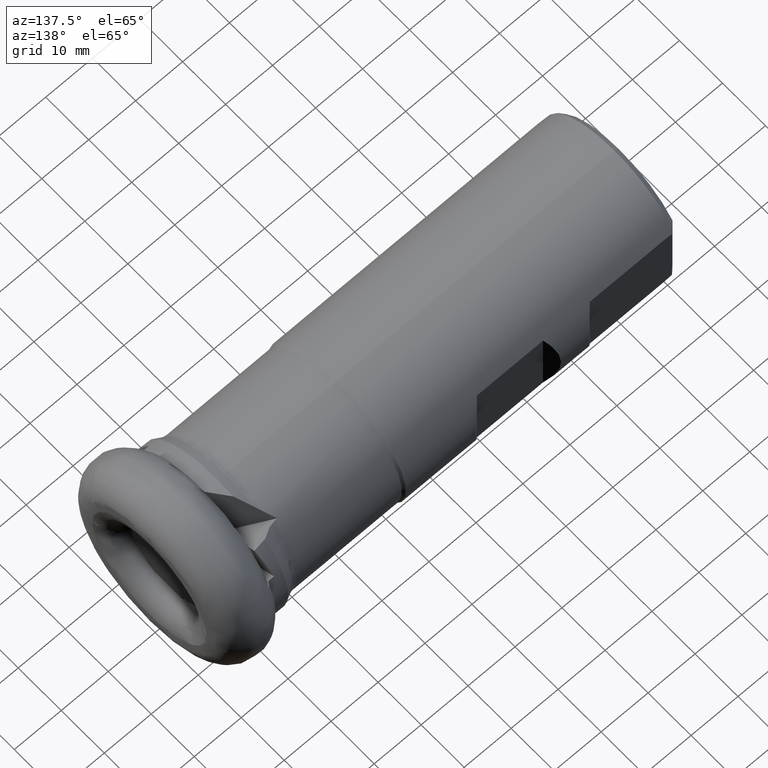
[diagram: clean part render]
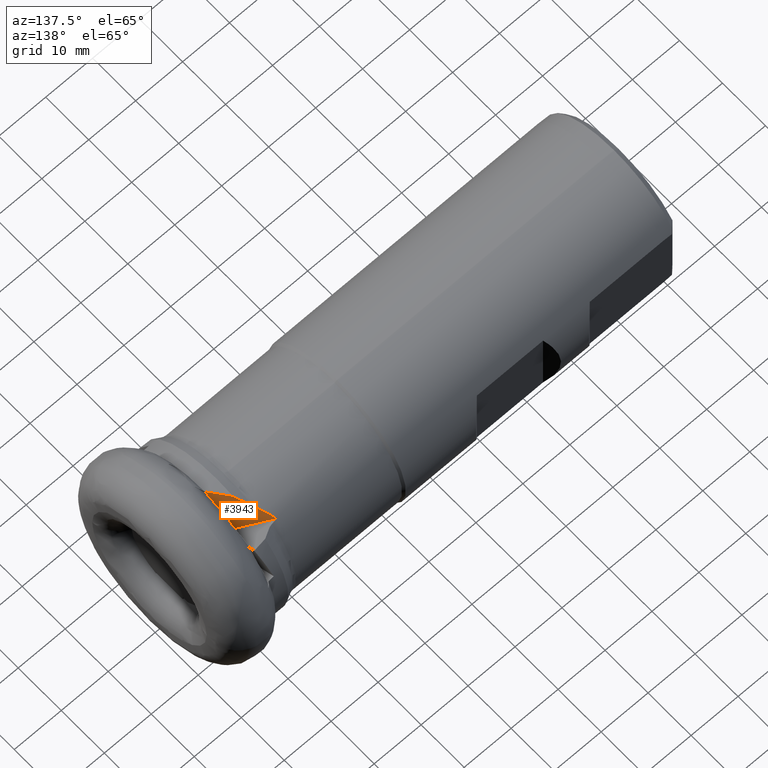
[diagram: same view with one face highlighted and labeled with its STEP entity id]
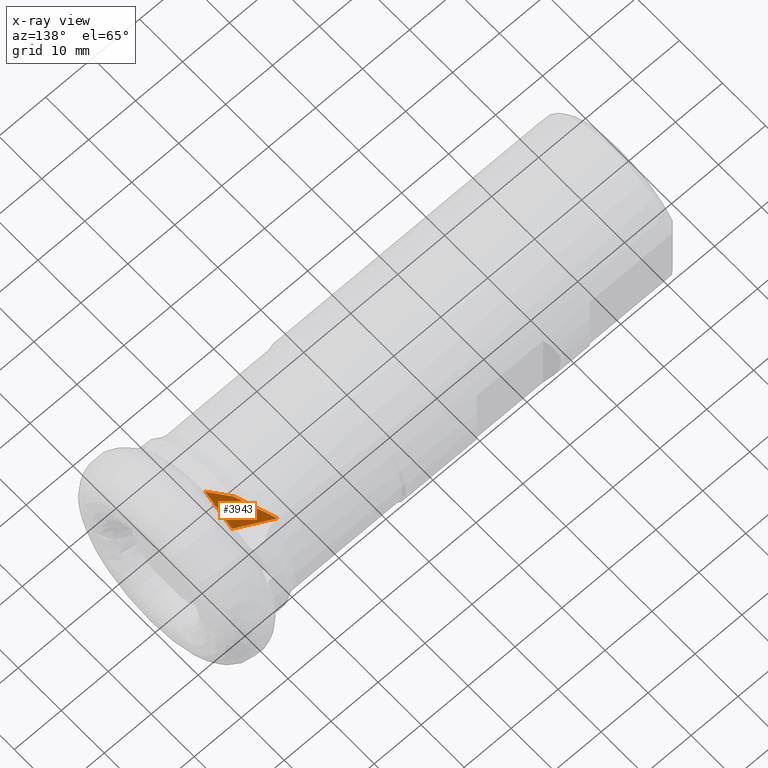
[diagram: x-ray of the same camera — body ghosted, the highlighted face saturated]
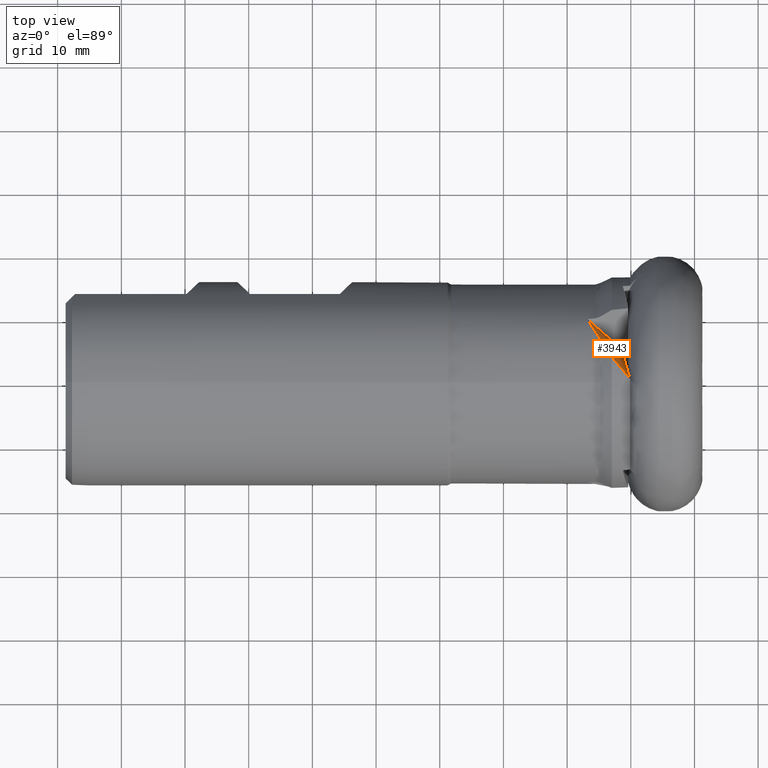
[diagram: same view with one face highlighted and labeled with its STEP entity id]
A machine part, auxiliary view. The second image highlights one B-rep face of the part: STEP entity #3943.
The next image is the same camera in x-ray: the body ghosted, the highlighted face saturated — about 0% of this face is hidden behind the body in this view.
A second angle (top view) of the same face is appended — the face is thin or edge-on in the first view.
In plain terms, the highlighted planar face has unit normal (0.7251, 0.6408, 0.2523).
Its self-contained STEP definition (entity closure, byte-faithful):
#3 = CARTESIAN_POINT ( 'NONE',  ( -11.21268239772161300, 4.321156452893641000, 10.36050407660936700 ) ) ;
#30 = LINE ( 'NONE', #1737, #590 ) ;
#56 = CARTESIAN_POINT ( 'NONE',  ( -12.10968547551563100, 2.883165474550450500, 16.59051172764951300 ) ) ;
#78 =( BOUNDED_CURVE ( )  B_SPLINE_CURVE ( 3, ( #5023, #3036, #3, #3967 ),
 .UNSPECIFIED., .F., .F. ) 
 B_SPLINE_CURVE_WITH_KNOTS ( ( 4, 4 ),
 ( 3.336818873749293900, 3.551018758880640600 ),
 .UNSPECIFIED. ) 
 CURVE ( )  GEOMETRIC_REPRESENTATION_ITEM ( )  RATIONAL_B_SPLINE_CURVE ( ( 1.000000000000000000, 0.9961801874265956400, 0.9961801874265956400, 1.000000000000000000 ) ) 
 REPRESENTATION_ITEM ( '' )  );
#83 = ORIENTED_EDGE ( 'NONE', *, *, #3743, .F. ) ;
#101 = CARTESIAN_POINT ( 'NONE',  ( -12.99999999999999800, 3.998106028385802100, 16.31732662496480300 ) ) ;
#238 = CARTESIAN_POINT ( 'NONE',  ( -15.63363394381394800, 8.109584465045626800, 13.44338647083727200 ) ) ;
#363 = CARTESIAN_POINT ( 'NONE',  ( -14.72339999999999800, 6.684174557346136000, 14.44786223275138900 ) ) ;
#420 = CARTESIAN_POINT ( 'NONE',  ( -16.82544663111128700, 9.978874949329496100, 12.12072830920836200 ) ) ;
#422 = CARTESIAN_POINT ( 'NONE',  ( -11.23424538701962300, 4.420419348281042100, 10.17036178828940200 ) ) ;
#437 = LINE ( 'NONE', #1092, #525 ) ;
#525 = VECTOR ( 'NONE', #4566, 1000.000000000000100 ) ;
#590 = VECTOR ( 'NONE', #2759, 1000.000000000000200 ) ;
#612 =( BOUNDED_CURVE ( )  B_SPLINE_CURVE ( 3, ( #6041, #3098, #56, #3601 ),
 .UNSPECIFIED., .F., .F. ) 
 B_SPLINE_CURVE_WITH_KNOTS ( ( 4, 4 ),
 ( 1.981545617319084900, 2.186173678793885700 ),
 .UNSPECIFIED. ) 
 CURVE ( )  GEOMETRIC_REPRESENTATION_ITEM ( )  RATIONAL_B_SPLINE_CURVE ( ( 1.000000000000000000, 0.9965136559314757800, 0.9965136559314757800, 1.000000000000000000 ) ) 
 REPRESENTATION_ITEM ( '' )  );
#614 = VERTEX_POINT ( 'NONE', #1498 ) ;
#618 = CARTESIAN_POINT ( 'NONE',  ( -14.86348937348693000, 6.915969482342140900, 14.26173045604032000 ) ) ;
#696 = CARTESIAN_POINT ( 'NONE',  ( -11.49278674055370300, 5.340228007741332700, 8.577206456862322500 ) ) ;
#753 = VECTOR ( 'NONE', #829, 1000.000000000000200 ) ;
#759 = EDGE_CURVE ( 'NONE', #1753, #2280, #1723, .T. ) ;
#829 = DIRECTION ( 'NONE',  ( -0.1391731009600657700, 0.4951340343707770800, -0.8575973040867592700 ) ) ;
#1092 = CARTESIAN_POINT ( 'NONE',  ( -22.53461991025967100, 14.94503437329934100, 15.91444114458235500 ) ) ;
#1296 = AXIS2_PLACEMENT_3D ( 'NONE', #2094, #5506, #2495 ) ;
#1298 = CARTESIAN_POINT ( 'NONE',  ( -15.46931785073820400, 7.865748652069156000, 13.59047791429331100 ) ) ;
#1339 = EDGE_CURVE ( 'NONE', #614, #5343, #612, .T. ) ;
#1413 = ORIENTED_EDGE ( 'NONE', *, *, #1339, .F. ) ;
#1492 = EDGE_CURVE ( 'NONE', #5427, #3689, #2272, .T. ) ;
#1498 = CARTESIAN_POINT ( 'NONE',  ( -10.16010389463429000, 0.5989624220435162400, 16.78931934346893200 ) ) ;
#1660 = EDGE_CURVE ( 'NONE', #5343, #5427, #6403, .T. ) ;
#1668 = ORIENTED_EDGE ( 'NONE', *, *, #1660, .F. ) ;
#1723 = LINE ( 'NONE', #5193, #2757 ) ;
#1737 = CARTESIAN_POINT ( 'NONE',  ( -8.284041208554510800, -6.075477394869786900, 28.34978821842373300 ) ) ;
#1753 = VERTEX_POINT ( 'NONE', #422 ) ;
#1840 = CARTESIAN_POINT ( 'NONE',  ( -10.47344719379198900, 1.713739133812833400, 14.85846943958986400 ) ) ;
#1898 = CARTESIAN_POINT ( 'NONE',  ( -16.47283593333510900, 9.388541802907672800, 12.60674371160888200 ) ) ;
#2094 = CARTESIAN_POINT ( 'NONE',  ( -19.32587437826048000, 3.529328970688222700, 35.68702290614376000 ) ) ;
#2129 = CARTESIAN_POINT ( 'NONE',  ( -15.31236116743035300, 7.625570529036749300, 13.74942873511350100 ) ) ;
#2136 = VERTEX_POINT ( 'NONE', #3219 ) ;
#2182 = ORIENTED_EDGE ( 'NONE', *, *, #2906, .F. ) ;
#2272 = B_SPLINE_CURVE_WITH_KNOTS ( 'NONE', 3,
 ( #5161, #618, #4119, #2129, #1298, #238 ),
 .UNSPECIFIED., .F., .F.,
 ( 4, 2, 4 ),
 ( 4.680562286126925500E-007, 0.0009839937032894863900, 0.001967519350350360300 ),
 .UNSPECIFIED. ) ;
#2280 = VERTEX_POINT ( 'NONE', #696 ) ;
#2305 = CARTESIAN_POINT ( 'NONE',  ( -8.284041208554510800, -6.075477394869786900, 28.34978821842373300 ) ) ;
#2307 = CARTESIAN_POINT ( 'NONE',  ( -10.47513129195750800, 1.610377738578185400, 15.12582787077049900 ) ) ;
#2327 = CARTESIAN_POINT ( 'NONE',  ( -10.41007380834189700, 1.416957353515566000, 15.43011962842832600 ) ) ;
#2387 = CARTESIAN_POINT ( 'NONE',  ( -10.45505548114131500, 1.547353931364080500, 15.22820341789509200 ) ) ;
#2399 = ORIENTED_EDGE ( 'NONE', *, *, #1492, .F. ) ;
#2495 = DIRECTION ( 'NONE',  ( -0.6622279435655946700, 0.7493024427832084600, 0.0000000000000000000 ) ) ;
#2594 = EDGE_CURVE ( 'NONE', #3689, #4244, #2795, .T. ) ;
#2704 = CARTESIAN_POINT ( 'NONE',  ( -14.72339999999999800, 6.684174557346136000, 14.44786223275138900 ) ) ;
#2748 = ORIENTED_EDGE ( 'NONE', *, *, #5604, .F. ) ;
#2757 = VECTOR ( 'NONE', #4709, 1000.000000000000200 ) ;
#2759 = DIRECTION ( 'NONE',  ( -0.1391731009600657700, 0.4951340343707770800, -0.8575973040867592700 ) ) ;
#2788 = CARTESIAN_POINT ( 'NONE',  ( -10.37537992465007100, 1.325788941807386500, 15.56196830085410100 ) ) ;
#2795 =( BOUNDED_CURVE ( )  B_SPLINE_CURVE ( 3, ( #4352, #5918, #1898, #2875 ),
 .UNSPECIFIED., .F., .F. ) 
 B_SPLINE_CURVE_WITH_KNOTS ( ( 4, 4 ),
 ( 2.488683765501562600, 2.634667273066977300 ),
 .UNSPECIFIED. ) 
 CURVE ( )  GEOMETRIC_REPRESENTATION_ITEM ( )  RATIONAL_B_SPLINE_CURVE ( ( 1.000000000000000000, 0.9982248563035449600, 0.9982248563035449600, 1.000000000000000000 ) ) 
 REPRESENTATION_ITEM ( '' )  );
#2875 = CARTESIAN_POINT ( 'NONE',  ( -16.82544663111128700, 9.978874949329496100, 12.12072830920836200 ) ) ;
#2906 = EDGE_CURVE ( 'NONE', #1753, #2136, #78, .T. ) ;
#2940 = EDGE_LOOP ( 'NONE', ( #83, #4131, #2182, #3849, #2748, #4498, #2399, #1668, #1413, #4803 ) ) ;
#2948 = VERTEX_POINT ( 'NONE', #4503 ) ;
#3036 = CARTESIAN_POINT ( 'NONE',  ( -11.22774576797140800, 4.374747177189864700, 10.26768221931388900 ) ) ;
#3098 = CARTESIAN_POINT ( 'NONE',  ( -11.15974160923007100, 1.746153591134100400, 16.74839306247274000 ) ) ;
#3219 = CARTESIAN_POINT ( 'NONE',  ( -11.18922789402347600, 4.260261294959825300, 10.44776367388307900 ) ) ;
#3333 = CARTESIAN_POINT ( 'NONE',  ( -10.33812844825744600, 1.232317681389089000, 15.69231585504140400 ) ) ;
#3376 = FACE_OUTER_BOUND ( 'NONE', #2940, .T. ) ;
#3393 = CARTESIAN_POINT ( 'NONE',  ( -15.63363394381394800, 8.109584465045626800, 13.44338647083727200 ) ) ;
#3601 = CARTESIAN_POINT ( 'NONE',  ( -12.99999999999999800, 3.998106028385802100, 16.31732662496480300 ) ) ;
#3671 = LINE ( 'NONE', #2305, #753 ) ;
#3689 = VERTEX_POINT ( 'NONE', #3393 ) ;
#3743 = EDGE_CURVE ( 'NONE', #4858, #2948, #4925, .T. ) ;
#3839 = CARTESIAN_POINT ( 'NONE',  ( -10.44786163901146000, 1.525894081714331600, 15.26203401894896300 ) ) ;
#3849 = ORIENTED_EDGE ( 'NONE', *, *, #759, .T. ) ;
#3943 = ADVANCED_FACE ( 'NONE', ( #3376 ), #5022, .T. ) ;
#3967 = CARTESIAN_POINT ( 'NONE',  ( -11.18922789402347600, 4.260261294959825300, 10.44776367388307900 ) ) ;
#4119 = CARTESIAN_POINT ( 'NONE',  ( -15.00940240109022600, 7.150658813516209900, 14.08498325145967200 ) ) ;
#4131 = ORIENTED_EDGE ( 'NONE', *, *, #6180, .T. ) ;
#4160 = CARTESIAN_POINT ( 'NONE',  ( -14.21259469577266400, 5.838984988474771300, 15.12655110445228800 ) ) ;
#4208 = CARTESIAN_POINT ( 'NONE',  ( -13.63734042177240400, 4.942401257743641800, 15.75056026176461700 ) ) ;
#4244 = VERTEX_POINT ( 'NONE', #420 ) ;
#4352 = CARTESIAN_POINT ( 'NONE',  ( -15.63363394381394800, 8.109584465045626800, 13.44338647083727200 ) ) ;
#4498 = ORIENTED_EDGE ( 'NONE', *, *, #2594, .F. ) ;
#4503 = CARTESIAN_POINT ( 'NONE',  ( -10.33812844825744600, 1.232317681389089000, 15.69231585504140400 ) ) ;
#4566 = DIRECTION ( 'NONE',  ( 0.6744754857292526400, -0.5866966416879547700, -0.4481850842925992300 ) ) ;
#4709 = DIRECTION ( 'NONE',  ( -0.1391731009600657700, 0.4951340343707770800, -0.8575973040867592700 ) ) ;
#4803 = ORIENTED_EDGE ( 'NONE', *, *, #6267, .T. ) ;
#4837 = CARTESIAN_POINT ( 'NONE',  ( -10.48609626951758500, 1.665198179163467400, 15.01810493664248500 ) ) ;
#4858 = VERTEX_POINT ( 'NONE', #1840 ) ;
#4867 = CARTESIAN_POINT ( 'NONE',  ( -12.99999999999999800, 3.998106028385802100, 16.31732662496480300 ) ) ;
#4925 = B_SPLINE_CURVE_WITH_KNOTS ( 'NONE', 3,
 ( #6289, #5283, #4837, #2307, #6271, #2387, #3839, #2327, #2788, #3333 ),
 .UNSPECIFIED., .F., .F.,
 ( 4, 2, 2, 2, 4 ),
 ( 0.006109110592733466500, 0.006357999383248330200, 0.006482443778505764300, 0.006606888173763198300, 0.007104665754792944800 ),
 .UNSPECIFIED. ) ;
#5022 = PLANE ( 'NONE',  #1296 ) ;
#5023 = CARTESIAN_POINT ( 'NONE',  ( -11.23424538701962300, 4.420419348281042100, 10.17036178828940200 ) ) ;
#5161 = CARTESIAN_POINT ( 'NONE',  ( -14.72339999999999800, 6.684174557346136000, 14.44786223275138900 ) ) ;
#5193 = CARTESIAN_POINT ( 'NONE',  ( -8.284041208554510800, -6.075477394869786900, 28.34978821842373300 ) ) ;
#5283 = CARTESIAN_POINT ( 'NONE',  ( -10.47855785358282100, 1.688375684354080300, 14.93757473123728700 ) ) ;
#5343 = VERTEX_POINT ( 'NONE', #4867 ) ;
#5427 = VERTEX_POINT ( 'NONE', #363 ) ;
#5506 = DIRECTION ( 'NONE',  ( 0.7250611471589468700, 0.6408036662190640400, 0.2523033773867450800 ) ) ;
#5604 = EDGE_CURVE ( 'NONE', #4244, #2280, #437, .T. ) ;
#5918 = CARTESIAN_POINT ( 'NONE',  ( -16.07485857056248300, 8.764336921452446900, 13.04841379334669900 ) ) ;
#6041 = CARTESIAN_POINT ( 'NONE',  ( -10.16010389463429000, 0.5989624220435162400, 16.78931934346893200 ) ) ;
#6180 = EDGE_CURVE ( 'NONE', #4858, #2136, #30, .T. ) ;
#6267 = EDGE_CURVE ( 'NONE', #614, #2948, #3671, .T. ) ;
#6271 = CARTESIAN_POINT ( 'NONE',  ( -10.46844553112672700, 1.589375363789016700, 15.15995667806510200 ) ) ;
#6289 = CARTESIAN_POINT ( 'NONE',  ( -10.47344719379198900, 1.713739133812833400, 14.85846943958986400 ) ) ;
#6403 =( BOUNDED_CURVE ( )  B_SPLINE_CURVE ( 3, ( #101, #4208, #4160, #2704 ),
 .UNSPECIFIED., .F., .F. ) 
 B_SPLINE_CURVE_WITH_KNOTS ( ( 4, 4 ),
 ( 2.550094660820041400, 2.678295221997243100 ),
 .UNSPECIFIED. ) 
 CURVE ( )  GEOMETRIC_REPRESENTATION_ITEM ( )  RATIONAL_B_SPLINE_CURVE ( ( 1.000000000000000000, 0.9986308535734630400, 0.9986308535734630400, 1.000000000000000000 ) ) 
 REPRESENTATION_ITEM ( '' )  );